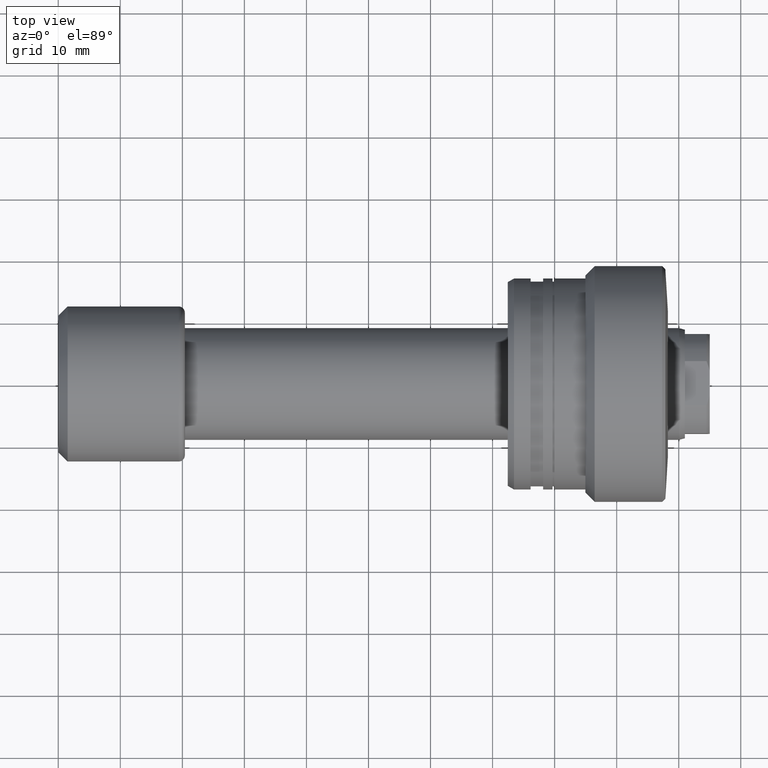
[diagram: clean part render]
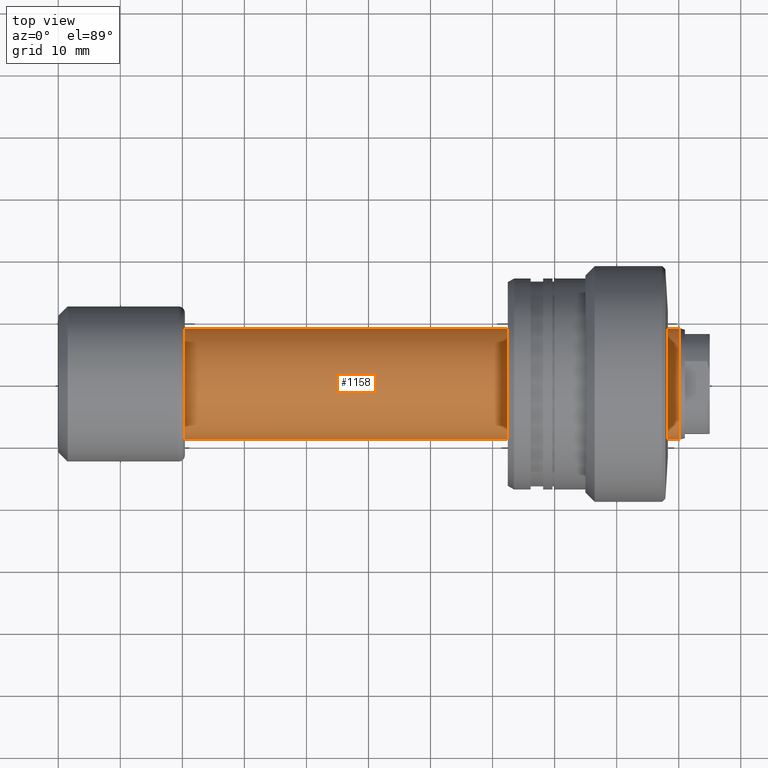
[diagram: same view with one face highlighted and labeled with its STEP entity id]
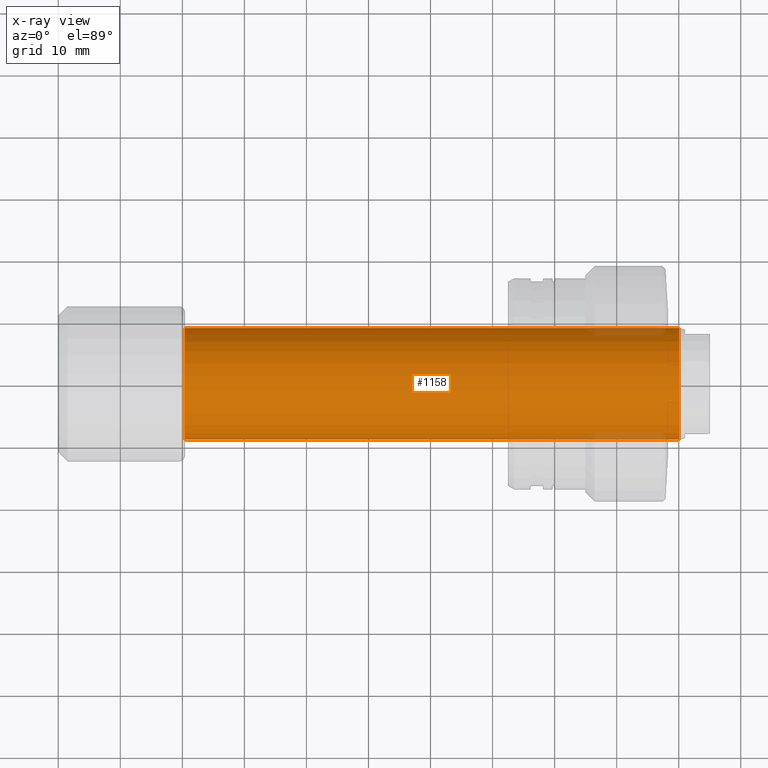
[diagram: x-ray of the same camera — body ghosted, the highlighted face saturated]
A machine part, top view. The second image highlights one B-rep face of the part: STEP entity #1158.
The next image is the same camera in x-ray: the body ghosted, the highlighted face saturated — about 2% of this face is hidden behind the body in this view.
In plain terms, the highlighted cylindrical surface (partial cylindrical patch) has radius 9 mm, axis along (-1, -0, -0).
Its self-contained STEP definition (entity closure, byte-faithful):
#70 = VECTOR ( 'NONE', #1865, 1000.000000000000000 ) ;
#81 = EDGE_CURVE ( 'NONE', #1994, #2138, #2085, .T. ) ;
#87 = LINE ( 'NONE', #564, #70 ) ;
#166 = LINE ( 'NONE', #1493, #2223 ) ;
#298 = EDGE_CURVE ( 'NONE', #869, #1994, #87, .T. ) ;
#319 = EDGE_LOOP ( 'NONE', ( #1322, #1592, #1252, #1173 ) ) ;
#377 = FACE_OUTER_BOUND ( 'NONE', #319, .T. ) ;
#436 = CARTESIAN_POINT ( 'NONE',  ( 20.39999999999999503, 2.181866337020893623E-16, 0.000000000000000000 ) ) ;
#564 = CARTESIAN_POINT ( 'NONE',  ( 9.625880898621695591E-17, -9.000000000000095923, 0.000000000000000000 ) ) ;
#575 = CARTESIAN_POINT ( 'NONE',  ( 20.39999999999999503, 9.000000000000000000, 1.102182119232623630E-15 ) ) ;
#641 = DIRECTION ( 'NONE',  ( -1.000000000000000000, -1.069542322069065801E-17, -0.000000000000000000 ) ) ;
#664 = CARTESIAN_POINT ( 'NONE',  ( 100.0667575123237754, -9.000000000000191847, 0.000000000000000000 ) ) ;
#745 = AXIS2_PLACEMENT_3D ( 'NONE', #1445, #1859, #2076 ) ;
#869 = VERTEX_POINT ( 'NONE', #664 ) ;
#971 = DIRECTION ( 'NONE',  ( 0.000000000000000000, -1.000000000000000000, 0.000000000000000000 ) ) ;
#1022 = EDGE_CURVE ( 'NONE', #869, #2023, #1958, .T. ) ;
#1122 = DIRECTION ( 'NONE',  ( -1.000000000000000000, -1.069542322069065801E-17, -0.000000000000000000 ) ) ;
#1153 = CARTESIAN_POINT ( 'NONE',  ( 20.39999999999999503, -9.000000000000000000, 0.000000000000000000 ) ) ;
#1158 = ADVANCED_FACE ( 'NONE', ( #377 ), #1489, .T. ) ;
#1165 = DIRECTION ( 'NONE',  ( -1.000000000000000000, -1.069542322069065801E-17, -0.000000000000000000 ) ) ;
#1173 = ORIENTED_EDGE ( 'NONE', *, *, #298, .F. ) ;
#1252 = ORIENTED_EDGE ( 'NONE', *, *, #81, .F. ) ;
#1322 = ORIENTED_EDGE ( 'NONE', *, *, #1022, .T. ) ;
#1445 = CARTESIAN_POINT ( 'NONE',  ( 0.000000000000000000, 0.000000000000000000, 0.000000000000000000 ) ) ;
#1489 = CYLINDRICAL_SURFACE ( 'NONE', #745, 9.000000000000095923 ) ;
#1493 = CARTESIAN_POINT ( 'NONE',  ( -9.625880898621695591E-17, 9.000000000000095923, 1.102182119232629744E-15 ) ) ;
#1592 = ORIENTED_EDGE ( 'NONE', *, *, #2306, .T. ) ;
#1718 = AXIS2_PLACEMENT_3D ( 'NONE', #2324, #641, #2208 ) ;
#1859 = DIRECTION ( 'NONE',  ( -1.000000000000000000, -1.069542322069065801E-17, -0.000000000000000000 ) ) ;
#1865 = DIRECTION ( 'NONE',  ( -1.000000000000000000, -1.069542322069065801E-17, -0.000000000000000000 ) ) ;
#1958 = CIRCLE ( 'NONE', #1718, 9.000000000000193623 ) ;
#1972 = CARTESIAN_POINT ( 'NONE',  ( 100.0667575123237754, 9.000000000000195399, 1.102182119232641577E-15 ) ) ;
#1994 = VERTEX_POINT ( 'NONE', #1153 ) ;
#2023 = VERTEX_POINT ( 'NONE', #1972 ) ;
#2076 = DIRECTION ( 'NONE',  ( 1.069542322069065955E-17, -1.000000000000000000, 0.000000000000000000 ) ) ;
#2085 = CIRCLE ( 'NONE', #2311, 9.000000000000000000 ) ;
#2138 = VERTEX_POINT ( 'NONE', #575 ) ;
#2208 = DIRECTION ( 'NONE',  ( 0.000000000000000000, -1.000000000000000000, 0.000000000000000000 ) ) ;
#2223 = VECTOR ( 'NONE', #1122, 1000.000000000000000 ) ;
#2306 = EDGE_CURVE ( 'NONE', #2023, #2138, #166, .T. ) ;
#2311 = AXIS2_PLACEMENT_3D ( 'NONE', #436, #1165, #971 ) ;
#2324 = CARTESIAN_POINT ( 'NONE',  ( 100.0667575123237754, 1.070256321916529121E-15, 0.000000000000000000 ) ) ;